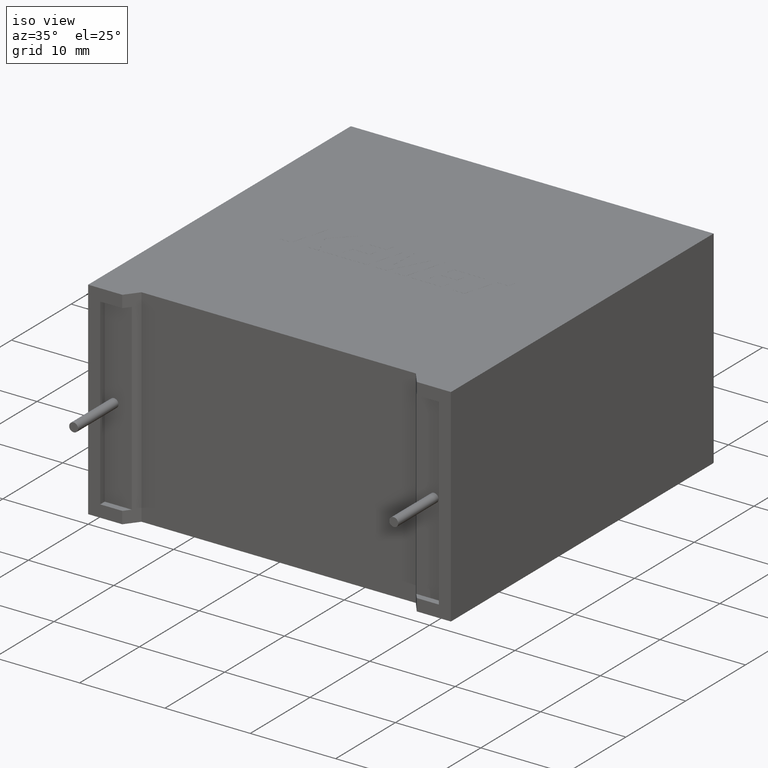
[diagram: clean part render]
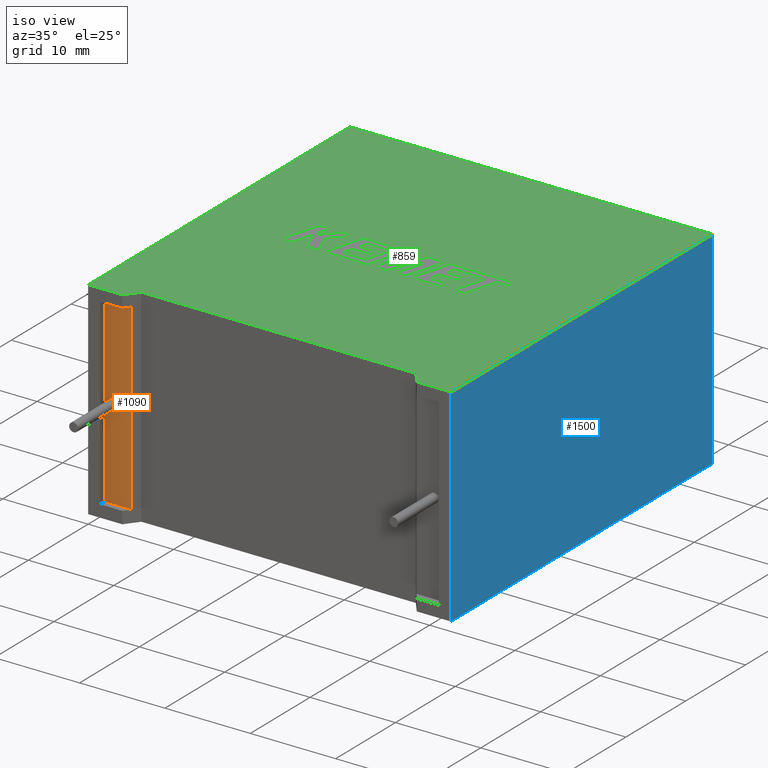
[diagram: same view with three faces highlighted in distinct colors, each labeled with its STEP entity id]
A machine part, iso view with three faces highlighted in distinct colors.
Their STEP definitions:

[orange] entity #1090 — the highlighted planar face has unit normal (0, -1, 0).
#72 = DIRECTION ( 'NONE',  ( 0.000000000000000000, -1.000000000000000000, 0.000000000000000000 ) ) ;
#101 = CARTESIAN_POINT ( 'NONE',  ( 0.000000000000000000, 0.7500000000000000000, 0.000000000000000000 ) ) ;
#117 = EDGE_CURVE ( 'NONE', #2273, #2472, #1595, .T. ) ;
#322 = DIRECTION ( 'NONE',  ( 0.000000000000000000, 0.000000000000000000, -1.000000000000000000 ) ) ;
#383 = VERTEX_POINT ( 'NONE', #2377 ) ;
#388 = PLANE ( 'NONE',  #616 ) ;
#407 = EDGE_CURVE ( 'NONE', #2472, #2273, #1832, .T. ) ;
#428 = CARTESIAN_POINT ( 'NONE',  ( 2.500000000000002220, 0.7500000000000000000, 12.67500000000000071 ) ) ;
#478 = CARTESIAN_POINT ( 'NONE',  ( 1.416666525000000121, 0.7500000000000000000, 1.416666525000000121 ) ) ;
#512 = DIRECTION ( 'NONE',  ( 6.060757405949343486E-17, 0.000000000000000000, -1.000000000000000000 ) ) ;
#616 = AXIS2_PLACEMENT_3D ( 'NONE', #101, #2996, #2041 ) ;
#695 = VERTEX_POINT ( 'NONE', #2833 ) ;
#728 = VECTOR ( 'NONE', #2598, 1000.000000000000000 ) ;
#794 = CARTESIAN_POINT ( 'NONE',  ( 2.500000000000002220, 0.7500000000000000000, 12.15000000000000036 ) ) ;
#832 = CARTESIAN_POINT ( 'NONE',  ( 4.579502201033873732, 0.7500000000000000000, 0.000000000000000000 ) ) ;
#931 = ORIENTED_EDGE ( 'NONE', *, *, #2204, .F. ) ;
#1090 = ADVANCED_FACE ( 'NONE', ( #2947, #1316 ), #388, .T. ) ;
#1237 = EDGE_CURVE ( 'NONE', #383, #2588, #1363, .T. ) ;
#1287 = DIRECTION ( 'NONE',  ( 0.000000000000000000, -1.000000000000000000, 0.000000000000000000 ) ) ;
#1316 = FACE_BOUND ( 'NONE', #1818, .T. ) ;
#1321 = EDGE_LOOP ( 'NONE', ( #931, #2258, #3021, #2382 ) ) ;
#1363 = LINE ( 'NONE', #3007, #2977 ) ;
#1573 = DIRECTION ( 'NONE',  ( 0.000000000000000000, 0.000000000000000000, -1.000000000000000000 ) ) ;
#1595 = CIRCLE ( 'NONE', #2429, 0.5249999999999994671 ) ;
#1608 = VECTOR ( 'NONE', #2809, 1000.000000000000000 ) ;
#1610 = LINE ( 'NONE', #3015, #728 ) ;
#1654 = AXIS2_PLACEMENT_3D ( 'NONE', #2179, #72, #322 ) ;
#1751 = VECTOR ( 'NONE', #1573, 1000.000000000000000 ) ;
#1759 = VERTEX_POINT ( 'NONE', #2317 ) ;
#1768 = CARTESIAN_POINT ( 'NONE',  ( 2.500000000000002220, 0.7500000000000000000, 11.62500000000000178 ) ) ;
#1818 = EDGE_LOOP ( 'NONE', ( #2570, #2984 ) ) ;
#1832 = CIRCLE ( 'NONE', #1654, 0.5249999999999994671 ) ;
#2041 = DIRECTION ( 'NONE',  ( 0.000000000000000000, -0.000000000000000000, -1.000000000000000000 ) ) ;
#2042 = LINE ( 'NONE', #2997, #1608 ) ;
#2169 = DIRECTION ( 'NONE',  ( 0.000000000000000000, 0.000000000000000000, -1.000000000000000000 ) ) ;
#2179 = CARTESIAN_POINT ( 'NONE',  ( 2.500000000000002220, 0.7500000000000000000, 12.15000000000000036 ) ) ;
#2204 = EDGE_CURVE ( 'NONE', #695, #1759, #2289, .T. ) ;
#2258 = ORIENTED_EDGE ( 'NONE', *, *, #2596, .T. ) ;
#2273 = VERTEX_POINT ( 'NONE', #428 ) ;
#2289 = LINE ( 'NONE', #832, #1751 ) ;
#2317 = CARTESIAN_POINT ( 'NONE',  ( 4.579502201033873732, 0.7500000000000000000, 1.416666525000000121 ) ) ;
#2377 = CARTESIAN_POINT ( 'NONE',  ( 1.416666524999998789, 0.7500000000000000000, 22.88333347500000414 ) ) ;
#2382 = ORIENTED_EDGE ( 'NONE', *, *, #3010, .T. ) ;
#2429 = AXIS2_PLACEMENT_3D ( 'NONE', #794, #1287, #2169 ) ;
#2472 = VERTEX_POINT ( 'NONE', #1768 ) ;
#2570 = ORIENTED_EDGE ( 'NONE', *, *, #117, .F. ) ;
#2588 = VERTEX_POINT ( 'NONE', #478 ) ;
#2596 = EDGE_CURVE ( 'NONE', #695, #383, #1610, .T. ) ;
#2598 = DIRECTION ( 'NONE',  ( -1.000000000000000000, 0.000000000000000000, 0.000000000000000000 ) ) ;
#2809 = DIRECTION ( 'NONE',  ( 1.000000000000000000, 0.000000000000000000, 0.000000000000000000 ) ) ;
#2833 = CARTESIAN_POINT ( 'NONE',  ( 4.579502201033873732, 0.7500000000000000000, 22.88333347500000414 ) ) ;
#2947 = FACE_OUTER_BOUND ( 'NONE', #1321, .T. ) ;
#2977 = VECTOR ( 'NONE', #512, 1000.000000000000000 ) ;
#2984 = ORIENTED_EDGE ( 'NONE', *, *, #407, .F. ) ;
#2996 = DIRECTION ( 'NONE',  ( 0.000000000000000000, -1.000000000000000000, 0.000000000000000000 ) ) ;
#2997 = CARTESIAN_POINT ( 'NONE',  ( 1.416666525000000121, 0.7500000000000000000, 1.416666525000000121 ) ) ;
#3007 = CARTESIAN_POINT ( 'NONE',  ( 1.416666524999998789, 0.7500000000000000000, 22.88333347500000414 ) ) ;
#3010 = EDGE_CURVE ( 'NONE', #2588, #1759, #2042, .T. ) ;
#3015 = CARTESIAN_POINT ( 'NONE',  ( 41.08333347500000343, 0.7500000000000000000, 22.88333347500000414 ) ) ;
#3021 = ORIENTED_EDGE ( 'NONE', *, *, #1237, .T. ) ;

[blue] entity #1500 — the highlighted planar face has unit normal (-1, 0, 0).
#27 = LINE ( 'NONE', #231, #621 ) ;
#30 = DIRECTION ( 'NONE',  ( -1.000000000000000000, 0.000000000000000000, 0.000000000000000000 ) ) ;
#167 = VECTOR ( 'NONE', #2423, 1000.000000000000000 ) ;
#231 = CARTESIAN_POINT ( 'NONE',  ( 42.50000000000000000, 0.000000000000000000, 24.30000000000000071 ) ) ;
#362 = VECTOR ( 'NONE', #751, 1000.000000000000000 ) ;
#370 = ORIENTED_EDGE ( 'NONE', *, *, #755, .T. ) ;
#384 = DIRECTION ( 'NONE',  ( 0.000000000000000000, 1.000000000000000000, 0.000000000000000000 ) ) ;
#429 = CARTESIAN_POINT ( 'NONE',  ( 42.50000000000000000, 0.000000000000000000, 24.30000000000000071 ) ) ;
#498 = EDGE_CURVE ( 'NONE', #3060, #632, #2741, .T. ) ;
#503 = VERTEX_POINT ( 'NONE', #1577 ) ;
#507 = CARTESIAN_POINT ( 'NONE',  ( 42.50000000000000000, 43.79999999999999716, 24.30000000000000071 ) ) ;
#621 = VECTOR ( 'NONE', #912, 1000.000000000000000 ) ;
#632 = VERTEX_POINT ( 'NONE', #1597 ) ;
#751 = DIRECTION ( 'NONE',  ( -0.000000000000000000, -0.000000000000000000, 1.000000000000000000 ) ) ;
#755 = EDGE_CURVE ( 'NONE', #632, #503, #1672, .T. ) ;
#810 = LINE ( 'NONE', #1079, #167 ) ;
#912 = DIRECTION ( 'NONE',  ( -0.000000000000000000, -0.000000000000000000, -1.000000000000000000 ) ) ;
#1002 = ORIENTED_EDGE ( 'NONE', *, *, #1380, .F. ) ;
#1076 = PLANE ( 'NONE',  #1104 ) ;
#1079 = CARTESIAN_POINT ( 'NONE',  ( 42.50000000000000000, 0.000000000000000000, 24.30000000000000071 ) ) ;
#1104 = AXIS2_PLACEMENT_3D ( 'NONE', #2609, #30, #3047 ) ;
#1135 = ORIENTED_EDGE ( 'NONE', *, *, #498, .T. ) ;
#1380 = EDGE_CURVE ( 'NONE', #2544, #503, #810, .T. ) ;
#1500 = ADVANCED_FACE ( 'NONE', ( #2546 ), #1076, .F. ) ;
#1538 = VECTOR ( 'NONE', #384, 1000.000000000000000 ) ;
#1577 = CARTESIAN_POINT ( 'NONE',  ( 42.50000000000000000, 43.79999999999999716, 24.30000000000000071 ) ) ;
#1597 = CARTESIAN_POINT ( 'NONE',  ( 42.50000000000000000, 43.79999999999999716, 0.000000000000000000 ) ) ;
#1672 = LINE ( 'NONE', #507, #362 ) ;
#1732 = CARTESIAN_POINT ( 'NONE',  ( 42.50000000000000000, 0.000000000000000000, 0.000000000000000000 ) ) ;
#1796 = EDGE_CURVE ( 'NONE', #2544, #3060, #27, .T. ) ;
#2275 = CARTESIAN_POINT ( 'NONE',  ( 42.50000000000000000, 0.000000000000000000, 0.000000000000000000 ) ) ;
#2423 = DIRECTION ( 'NONE',  ( 0.000000000000000000, 1.000000000000000000, 0.000000000000000000 ) ) ;
#2544 = VERTEX_POINT ( 'NONE', #429 ) ;
#2546 = FACE_OUTER_BOUND ( 'NONE', #2990, .T. ) ;
#2609 = CARTESIAN_POINT ( 'NONE',  ( 42.50000000000000000, 0.000000000000000000, 24.30000000000000071 ) ) ;
#2741 = LINE ( 'NONE', #2275, #1538 ) ;
#2897 = ORIENTED_EDGE ( 'NONE', *, *, #1796, .T. ) ;
#2990 = EDGE_LOOP ( 'NONE', ( #1135, #370, #1002, #2897 ) ) ;
#3047 = DIRECTION ( 'NONE',  ( 0.000000000000000000, 0.000000000000000000, 1.000000000000000000 ) ) ;
#3060 = VERTEX_POINT ( 'NONE', #1732 ) ;

[green] entity #859 — the highlighted planar face has unit normal (0, 0, -1).
#56 = VERTEX_POINT ( 'NONE', #509 ) ;
#61 = CARTESIAN_POINT ( 'NONE',  ( 0.000000000000000000, 0.000000000000000000, 24.30000000000000071 ) ) ;
#104 = DIRECTION ( 'NONE',  ( 1.000000000000000000, 0.000000000000000000, 0.000000000000000000 ) ) ;
#133 = VERTEX_POINT ( 'NONE', #1943 ) ;
#138 = VERTEX_POINT ( 'NONE', #61 ) ;
#143 = EDGE_CURVE ( 'NONE', #138, #2219, #1727, .T. ) ;
#160 = ORIENTED_EDGE ( 'NONE', *, *, #534, .T. ) ;
#167 = VECTOR ( 'NONE', #2423, 1000.000000000000000 ) ;
#207 = DIRECTION ( 'NONE',  ( -0.000000000000000000, -1.000000000000000000, -0.000000000000000000 ) ) ;
#240 = EDGE_CURVE ( 'NONE', #56, #2544, #343, .T. ) ;
#245 = DIRECTION ( 'NONE',  ( 0.000000000000000000, 0.000000000000000000, -1.000000000000000000 ) ) ;
#293 = ORIENTED_EDGE ( 'NONE', *, *, #982, .T. ) ;
#300 = CARTESIAN_POINT ( 'NONE',  ( 0.000000000000000000, 0.000000000000000000, 24.30000000000000071 ) ) ;
#342 = CARTESIAN_POINT ( 'NONE',  ( 0.000000000000000000, 43.79999999999999716, 24.30000000000000071 ) ) ;
#343 = LINE ( 'NONE', #542, #2581 ) ;
#429 = CARTESIAN_POINT ( 'NONE',  ( 42.50000000000000000, 0.000000000000000000, 24.30000000000000071 ) ) ;
#503 = VERTEX_POINT ( 'NONE', #1577 ) ;
#509 = CARTESIAN_POINT ( 'NONE',  ( 38.50000000000000000, 2.449293598294707893E-16, 24.30000000000000071 ) ) ;
#534 = EDGE_CURVE ( 'NONE', #1099, #56, #2257, .T. ) ;
#542 = CARTESIAN_POINT ( 'NONE',  ( 0.000000000000000000, 0.000000000000000000, 24.30000000000000071 ) ) ;
#810 = LINE ( 'NONE', #1079, #167 ) ;
#827 = EDGE_CURVE ( 'NONE', #1607, #2219, #1716, .T. ) ;
#859 = ADVANCED_FACE ( 'NONE', ( #2379 ), #2867, .F. ) ;
#899 = CARTESIAN_POINT ( 'NONE',  ( 4.000000000000002665, 2.449293598294707893E-16, 24.30000000000000071 ) ) ;
#982 = EDGE_CURVE ( 'NONE', #133, #138, #2513, .T. ) ;
#1007 = CARTESIAN_POINT ( 'NONE',  ( 0.000000000000000000, 0.000000000000000000, 24.30000000000000071 ) ) ;
#1079 = CARTESIAN_POINT ( 'NONE',  ( 42.50000000000000000, 0.000000000000000000, 24.30000000000000071 ) ) ;
#1099 = VERTEX_POINT ( 'NONE', #2959 ) ;
#1100 = ORIENTED_EDGE ( 'NONE', *, *, #1874, .F. ) ;
#1250 = ORIENTED_EDGE ( 'NONE', *, *, #827, .F. ) ;
#1354 = VECTOR ( 'NONE', #207, 1000.000000000000000 ) ;
#1380 = EDGE_CURVE ( 'NONE', #2544, #503, #810, .T. ) ;
#1412 = DIRECTION ( 'NONE',  ( -1.000000000000000000, -1.214431384679566713E-16, 0.000000000000000000 ) ) ;
#1497 = DIRECTION ( 'NONE',  ( -0.6114189266779090914, -0.7913070807847188970, -0.000000000000000000 ) ) ;
#1577 = CARTESIAN_POINT ( 'NONE',  ( 42.50000000000000000, 43.79999999999999716, 24.30000000000000071 ) ) ;
#1580 = CARTESIAN_POINT ( 'NONE',  ( 5.180225000000002744, 1.527463999999999045, 24.30000000000000071 ) ) ;
#1607 = VERTEX_POINT ( 'NONE', #1580 ) ;
#1716 = LINE ( 'NONE', #2657, #3026 ) ;
#1727 = LINE ( 'NONE', #300, #2734 ) ;
#1792 = CARTESIAN_POINT ( 'NONE',  ( 0.000000000000000000, 0.000000000000000000, 24.30000000000000071 ) ) ;
#1806 = DIRECTION ( 'NONE',  ( 0.6114189266779090914, -0.7913070807847188970, -0.000000000000000000 ) ) ;
#1865 = CARTESIAN_POINT ( 'NONE',  ( 21.25000000000000000, 1.527464000000001043, 24.30000000000000071 ) ) ;
#1874 = EDGE_CURVE ( 'NONE', #1099, #1607, #3023, .T. ) ;
#1943 = CARTESIAN_POINT ( 'NONE',  ( 0.000000000000000000, 43.79999999999999716, 24.30000000000000071 ) ) ;
#1965 = ORIENTED_EDGE ( 'NONE', *, *, #2819, .T. ) ;
#2129 = EDGE_LOOP ( 'NONE', ( #2949, #1965, #293, #2599, #1250, #1100, #160, #2325 ) ) ;
#2219 = VERTEX_POINT ( 'NONE', #899 ) ;
#2257 = LINE ( 'NONE', #2460, #2721 ) ;
#2325 = ORIENTED_EDGE ( 'NONE', *, *, #240, .T. ) ;
#2379 = FACE_OUTER_BOUND ( 'NONE', #2129, .T. ) ;
#2385 = VECTOR ( 'NONE', #2976, 1000.000000000000000 ) ;
#2423 = DIRECTION ( 'NONE',  ( 0.000000000000000000, 1.000000000000000000, 0.000000000000000000 ) ) ;
#2460 = CARTESIAN_POINT ( 'NONE',  ( 38.50000000000000000, 2.449293598294707893E-16, 24.30000000000000071 ) ) ;
#2479 = LINE ( 'NONE', #342, #2385 ) ;
#2487 = VECTOR ( 'NONE', #1412, 1000.000000000000000 ) ;
#2513 = LINE ( 'NONE', #1792, #1354 ) ;
#2544 = VERTEX_POINT ( 'NONE', #429 ) ;
#2545 = DIRECTION ( 'NONE',  ( 1.000000000000000000, 0.000000000000000000, 0.000000000000000000 ) ) ;
#2580 = AXIS2_PLACEMENT_3D ( 'NONE', #1007, #245, #2821 ) ;
#2581 = VECTOR ( 'NONE', #2545, 1000.000000000000000 ) ;
#2599 = ORIENTED_EDGE ( 'NONE', *, *, #143, .T. ) ;
#2657 = CARTESIAN_POINT ( 'NONE',  ( 4.000000000000002665, 2.449293598294707893E-16, 24.30000000000000071 ) ) ;
#2721 = VECTOR ( 'NONE', #1806, 1000.000000000000000 ) ;
#2734 = VECTOR ( 'NONE', #104, 1000.000000000000000 ) ;
#2819 = EDGE_CURVE ( 'NONE', #503, #133, #2479, .T. ) ;
#2821 = DIRECTION ( 'NONE',  ( -1.000000000000000000, 0.000000000000000000, -0.000000000000000000 ) ) ;
#2867 = PLANE ( 'NONE',  #2580 ) ;
#2949 = ORIENTED_EDGE ( 'NONE', *, *, #1380, .T. ) ;
#2959 = CARTESIAN_POINT ( 'NONE',  ( 37.31977499999999992, 1.527463999999999045, 24.30000000000000071 ) ) ;
#2976 = DIRECTION ( 'NONE',  ( -1.000000000000000000, 0.000000000000000000, 0.000000000000000000 ) ) ;
#3023 = LINE ( 'NONE', #1865, #2487 ) ;
#3026 = VECTOR ( 'NONE', #1497, 1000.000000000000000 ) ;